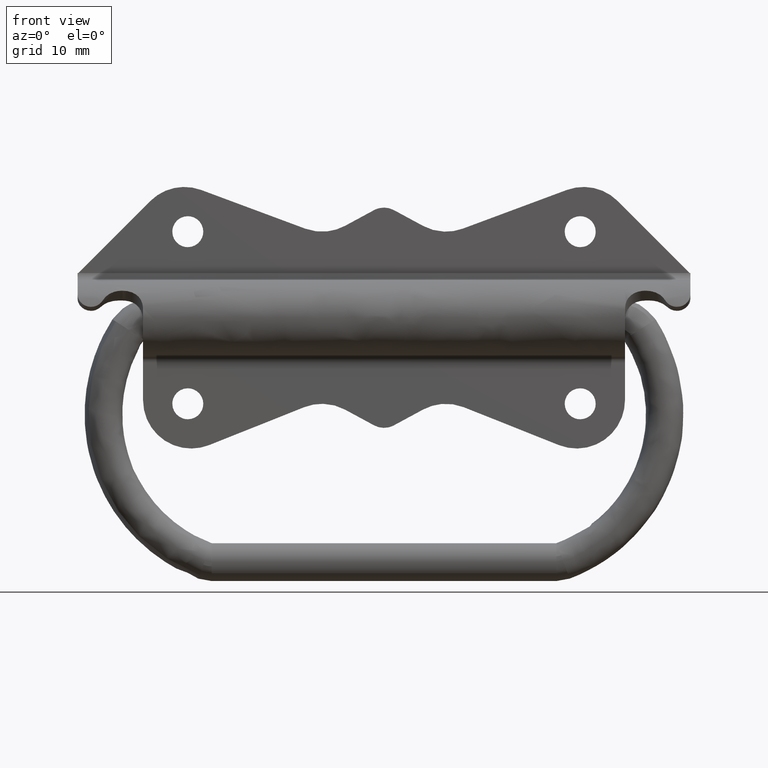
[diagram: clean part render]
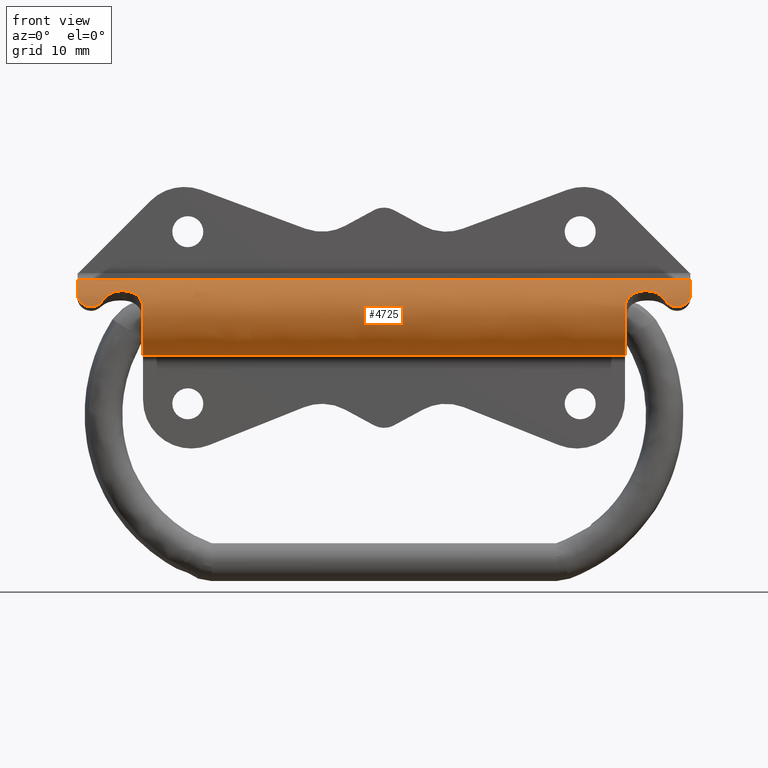
[diagram: same view with one face highlighted and labeled with its STEP entity id]
A machine part, front view. The second image highlights one B-rep face of the part: STEP entity #4725.
In plain terms, the highlighted face is a freeform B-spline surface patch.
Its self-contained STEP definition (entity closure, byte-faithful):
#2433=CARTESIAN_POINT('',(-40.858714640228392,-4.893449210147501,2.510807604677710));
#2434=VERTEX_POINT('',#2433);
#2435=CARTESIAN_POINT('',(-38.014639957376353,-3.848908330853245,3.928855388110955));
#2436=VERTEX_POINT('',#2435);
#2437=CARTESIAN_POINT('',(-40.858714640228392,-4.893449210147501,2.510807604677710));
#2438=CARTESIAN_POINT('',(-40.718434806020582,-4.774601500614652,2.742436356023677));
#2439=CARTESIAN_POINT('',(-40.551381612482608,-4.649309612515444,2.946321127910816));
#2440=CARTESIAN_POINT('',(-40.304409115238322,-4.495542966199494,3.169073041587535));
#2441=CARTESIAN_POINT('',(-40.253091291467548,-4.464934810028913,3.212006150923623));
#2442=CARTESIAN_POINT('',(-40.146413381458117,-4.404306826385441,3.294648350041885));
#2443=CARTESIAN_POINT('',(-40.091686854464427,-4.374648732334834,3.333866919368933));
#2444=CARTESIAN_POINT('',(-39.923380159927923,-4.288007882436129,3.445557874958832));
#2445=CARTESIAN_POINT('',(-39.805682865503222,-4.233353215256480,3.512091850267112));
#2446=CARTESIAN_POINT('',(-39.559137458127928,-4.132185339295604,3.630580247225718));
#2447=CARTESIAN_POINT('',(-39.430294037666350,-4.085664156270279,3.682537059004130));
#2448=CARTESIAN_POINT('',(-39.160804156539143,-4.002873840768987,3.772364219379915));
#2449=CARTESIAN_POINT('',(-39.023365621620492,-3.967605056604223,3.809173832433130));
#2450=CARTESIAN_POINT('',(-38.743456769810521,-3.910133405409939,3.868145799059539));
#2451=CARTESIAN_POINT('',(-38.600955623820852,-3.887916192510616,3.890316904509543));
#2452=CARTESIAN_POINT('',(-38.310756846571792,-3.857525943591376,3.920452975361190));
#2453=CARTESIAN_POINT('',(-38.162611875245517,-3.849413954257926,3.928360053479797));
#2454=CARTESIAN_POINT('',(-38.014639957376353,-3.848908330853245,3.928855388110955));
#2455=B_SPLINE_CURVE_WITH_KNOTS('',3,(#2437,#2438,#2439,#2440,#2441,#2442,#2443,#2444,#2445,#2446,#2447,#2448,#2449,#2450,#2451,#2452,#2453,#2454),.UNSPECIFIED.,.F.,.U.,(4,2,2,2,2,2,2,2,4),(0.0,0.249999999999999,0.312499999999999,0.374999999999999,0.499999999999999,0.624999999999999,0.750000000000000,0.875000000000000,1.0),.UNSPECIFIED.);
#2456=EDGE_CURVE('',#2434,#2436,#2455,.T.);
#2562=CARTESIAN_POINT('',(-35.0,-5.368921926890370,1.193598484816320));
#2563=VERTEX_POINT('',#2562);
#2569=CARTESIAN_POINT('',(-38.014639957376353,-3.848908330853245,3.928855388110955));
#2570=CARTESIAN_POINT('',(-37.808956347201182,-3.848191318282662,3.929557810415579));
#2571=CARTESIAN_POINT('',(-37.606495913697898,-3.862540173138805,3.915659384347801));
#2572=CARTESIAN_POINT('',(-37.308174094467169,-3.905013532694488,3.873147371364592));
#2573=CARTESIAN_POINT('',(-37.209593428227670,-3.922677323162098,3.855323593046115));
#2574=CARTESIAN_POINT('',(-37.063045637199103,-3.954344741527435,3.822746004162632));
#2575=CARTESIAN_POINT('',(-37.014277687916952,-3.965800143407224,3.810871553784593));
#2576=CARTESIAN_POINT('',(-36.917982112959102,-3.990225940969474,3.785288590967354));
#2577=CARTESIAN_POINT('',(-36.870481591791943,-4.003182581718611,3.771595028561853));
#2578=CARTESIAN_POINT('',(-36.636156835835159,-4.071478024649823,3.698575964821885));
#2579=CARTESIAN_POINT('',(-36.458769842813631,-4.137301172630122,3.625782139384826));
#2580=CARTESIAN_POINT('',(-36.249689216700297,-4.230888747844535,3.514317533045436));
#2581=CARTESIAN_POINT('',(-36.208511754954252,-4.250174621981167,3.490989129705585));
#2582=CARTESIAN_POINT('',(-36.127460443658912,-4.289825944209211,3.442147990636789));
#2583=CARTESIAN_POINT('',(-36.087610750255628,-4.310186214035134,3.416637548620640));
#2584=CARTESIAN_POINT('',(-35.971495139328063,-4.372000833613614,3.337675548056424));
#2585=CARTESIAN_POINT('',(-35.898144468072850,-4.414430868677470,3.281501864744414));
#2586=CARTESIAN_POINT('',(-35.759339476791737,-4.500951101005581,3.161786452151732));
#2587=CARTESIAN_POINT('',(-35.693885939690553,-4.545042976856620,3.098245048164286));
#2588=CARTESIAN_POINT('',(-35.601619352303231,-4.611878214488582,2.997034174765556));
#2589=CARTESIAN_POINT('',(-35.571851003655247,-4.634273074801234,2.962312550644591));
#2590=CARTESIAN_POINT('',(-35.514305776532431,-4.679204476878808,2.890817884802061));
#2591=CARTESIAN_POINT('',(-35.486464700233483,-4.701795618658934,2.853952866804435));
#2592=CARTESIAN_POINT('',(-35.353057801881327,-4.814241021063744,2.665323147465005));
#2593=CARTESIAN_POINT('',(-35.266475606710330,-4.900994041086489,2.503367867259777));
#2594=CARTESIAN_POINT('',(-35.163693984678019,-5.022557135663972,2.243450052127176));
#2595=CARTESIAN_POINT('',(-35.133977603228573,-5.061655470069412,2.153968919026535));
#2596=CARTESIAN_POINT('',(-35.083401701886331,-5.136388796276559,1.969123748092182));
#2597=CARTESIAN_POINT('',(-35.062941830400483,-5.171431680170569,1.875208564845169));
#2598=CARTESIAN_POINT('',(-35.014733365702718,-5.269071790755191,1.589758975829295));
#2599=CARTESIAN_POINT('',(-34.999999999999993,-5.324315372205761,1.394243100720028));
#2600=CARTESIAN_POINT('',(-35.0,-5.368921926890370,1.193598484816310));
#2601=B_SPLINE_CURVE_WITH_KNOTS('',3,(#2569,#2570,#2571,#2572,#2573,#2574,#2575,#2576,#2577,#2578,#2579,#2580,#2581,#2582,#2583,#2584,#2585,#2586,#2587,#2588,#2589,#2590,#2591,#2592,#2593,#2594,#2595,#2596,#2597,#2598,#2599,#2600),.UNSPECIFIED.,.F.,.U.,(4,2,2,2,2,2,2,2,2,2,2,2,2,2,2,4),(0.0,0.124999999999997,0.187499999999993,0.218749999999991,0.249999999999989,0.374999999999990,0.406249999999991,0.437499999999992,0.499999999999993,0.562499999999995,0.593749999999996,0.624999999999997,0.749999999999996,0.812499999999997,0.874999999999998,1.0),.UNSPECIFIED.);
#2602=EDGE_CURVE('',#2436,#2563,#2601,.T.);
#2662=CARTESIAN_POINT('',(-42.559969749689600,-5.270597114101750,1.571879785741370));
#2663=VERTEX_POINT('',#2662);
#2669=CARTESIAN_POINT('',(-44.500000000000000,-4.377421717244480,3.329891756408365));
#2670=VERTEX_POINT('',#2669);
#2671=CARTESIAN_POINT('',(-44.500000000000000,-4.377421717244480,3.329891756408365));
#2672=CARTESIAN_POINT('',(-44.499999005133802,-4.455960542820560,3.226645889613455));
#2673=CARTESIAN_POINT('',(-44.488696704239153,-4.529630458358247,3.122228949707400));
#2674=CARTESIAN_POINT('',(-44.454196896171403,-4.633268852322053,2.964251367212626));
#2675=CARTESIAN_POINT('',(-44.439755929913538,-4.666668174282658,2.911368295971343));
#2676=CARTESIAN_POINT('',(-44.404667425379799,-4.731220595594441,2.805246669986920));
#2677=CARTESIAN_POINT('',(-44.383943532305032,-4.762399303178829,2.751934017432812));
#2678=CARTESIAN_POINT('',(-44.313638017839011,-4.850606786542355,2.595373891992773));
#2679=CARTESIAN_POINT('',(-44.255642387444297,-4.903112834810032,2.494227005644520));
#2680=CARTESIAN_POINT('',(-44.168892701228060,-4.961996801254958,2.372618381344936));
#2681=CARTESIAN_POINT('',(-44.150824381277673,-4.973434367956749,2.348540262121655));
#2682=CARTESIAN_POINT('',(-44.113218496892472,-4.995652445542983,2.300901436072443));
#2683=CARTESIAN_POINT('',(-44.093629054234512,-5.006456878613943,2.277285715181510));
#2684=CARTESIAN_POINT('',(-44.033270999748332,-5.037579764591039,2.208020140158403));
#2685=CARTESIAN_POINT('',(-43.990777845956053,-5.056708011437523,2.163749223903662));
#2686=CARTESIAN_POINT('',(-43.856697450288493,-5.109817791457551,2.036710240958330));
#2687=CARTESIAN_POINT('',(-43.758572594698130,-5.139560130949949,1.959658402358374));
#2688=CARTESIAN_POINT('',(-43.544206146035030,-5.189807633610465,1.822425888672187));
#2689=CARTESIAN_POINT('',(-43.431275164608330,-5.209544776300630,1.764403065612467));
#2690=CARTESIAN_POINT('',(-43.254231443738497,-5.232842746686084,1.693509824893489));
#2691=CARTESIAN_POINT('',(-43.193897885286042,-5.239550572100152,1.672564640060150));
#2692=CARTESIAN_POINT('',(-43.070531559959242,-5.251007442522152,1.636240664251912));
#2693=CARTESIAN_POINT('',(-43.007447326621993,-5.255747002591989,1.620890671707646));
#2694=CARTESIAN_POINT('',(-42.817844347612088,-5.266953956071275,1.584250145702826));
#2695=CARTESIAN_POINT('',(-42.689763044720962,-5.270597114101751,1.571879785741370));
#2696=CARTESIAN_POINT('',(-42.559969749689600,-5.270597114101750,1.571879785741370));
#2697=B_SPLINE_CURVE_WITH_KNOTS('',3,(#2671,#2672,#2673,#2674,#2675,#2676,#2677,#2678,#2679,#2680,#2681,#2682,#2683,#2684,#2685,#2686,#2687,#2688,#2689,#2690,#2691,#2692,#2693,#2694,#2695,#2696),.UNSPECIFIED.,.F.,.U.,(4,2,2,2,2,2,2,2,2,2,2,2,4),(0.0,0.124999999999999,0.187499999999998,0.249999999999997,0.374999999999995,0.406249999999997,0.437499999999998,0.499999999999997,0.624999999999999,0.750000000000002,0.812500000000003,0.875000000000004,1.0),.UNSPECIFIED.);
#2698=EDGE_CURVE('',#2670,#2663,#2697,.T.);
#2739=CARTESIAN_POINT('',(-42.559969749689600,-5.270597114101750,1.571879785741370));
#2740=CARTESIAN_POINT('',(-42.385086596087277,-5.270597114101751,1.571879785741370));
#2741=CARTESIAN_POINT('',(-42.214153650737543,-5.264095650910921,1.594175453897691));
#2742=CARTESIAN_POINT('',(-41.963517664806190,-5.243633019603906,1.659770271952392));
#2743=CARTESIAN_POINT('',(-41.880469491022119,-5.234894524022310,1.687314530248914));
#2744=CARTESIAN_POINT('',(-41.720980196467430,-5.213680765735940,1.751765930318030));
#2745=CARTESIAN_POINT('',(-41.644059242329647,-5.201190237895172,1.788731413825803));
#2746=CARTESIAN_POINT('',(-41.495790489004662,-5.171876033672039,1.871800805083728));
#2747=CARTESIAN_POINT('',(-41.424442123930717,-5.155055143621794,1.917904610584846));
#2748=CARTESIAN_POINT('',(-41.287546248224110,-5.116162882626309,2.019363510495566));
#2749=CARTESIAN_POINT('',(-41.223418759526972,-5.094477727478698,2.073685161639209));
#2750=CARTESIAN_POINT('',(-41.104036119025899,-5.046248206316850,2.188436086711957));
#2751=CARTESIAN_POINT('',(-41.048681011340250,-5.019676704917227,2.248942614149146));
#2752=CARTESIAN_POINT('',(-40.946700430118497,-4.960832092491025,2.375929724073454));
#2753=CARTESIAN_POINT('',(-40.899838988286199,-4.928289569382877,2.442905337668488));
#2754=CARTESIAN_POINT('',(-40.858714640228392,-4.893449210147501,2.510807604677710));
#2755=B_SPLINE_CURVE_WITH_KNOTS('',3,(#2739,#2740,#2741,#2742,#2743,#2744,#2745,#2746,#2747,#2748,#2749,#2750,#2751,#2752,#2753,#2754),.UNSPECIFIED.,.F.,.U.,(4,2,2,2,2,2,2,4),(0.0,0.250000000000000,0.375000000000000,0.500000000000000,0.625000000000000,0.750000000000000,0.875000000000000,1.0),.UNSPECIFIED.);
#2756=EDGE_CURVE('',#2663,#2434,#2755,.T.);
#2819=CARTESIAN_POINT('',(37.999426920138973,-3.848370860017220,3.928357825288078));
#2820=VERTEX_POINT('',#2819);
#2826=CARTESIAN_POINT('',(34.999500000000012,-5.368921926890360,1.193598484816366));
#2827=VERTEX_POINT('',#2826);
#2828=CARTESIAN_POINT('',(34.999500000000012,-5.368921926890360,1.193598484816366));
#2829=CARTESIAN_POINT('',(34.999502390050630,-5.324447433530525,1.393556672813301));
#2830=CARTESIAN_POINT('',(35.014146375223802,-5.269466695320497,1.588143579084679));
#2831=CARTESIAN_POINT('',(35.061812138672451,-5.172542605752470,1.871867785549744));
#2832=CARTESIAN_POINT('',(35.082001767797813,-5.137821663055454,1.965079411323322));
#2833=CARTESIAN_POINT('',(35.119433836069668,-5.082261848829279,2.102801069591211));
#2834=CARTESIAN_POINT('',(35.133151732119011,-5.063103669375552,2.148487143399122));
#2835=CARTESIAN_POINT('',(35.162770860124802,-5.024093252925147,2.238154625459192));
#2836=CARTESIAN_POINT('',(35.178684860670828,-5.004214647233559,2.282212300417275));
#2837=CARTESIAN_POINT('',(35.263822561623492,-4.903158269316247,2.498702703004527));
#2838=CARTESIAN_POINT('',(35.349628082216988,-4.816982305631432,2.659801075655535));
#2839=CARTESIAN_POINT('',(35.480862237258819,-4.705837172793808,2.846769509005716));
#2840=CARTESIAN_POINT('',(35.508315952034437,-4.683437810891207,2.883439230651210));
#2841=CARTESIAN_POINT('',(35.565719541989793,-4.638385960133256,2.955333091664211));
#2842=CARTESIAN_POINT('',(35.595565081382823,-4.615820622040110,2.990413759644337));
#2843=CARTESIAN_POINT('',(35.687761498343889,-4.548715645486671,3.092285477805852));
#2844=CARTESIAN_POINT('',(35.753054369012993,-4.504538321792492,3.156079819603577));
#2845=CARTESIAN_POINT('',(35.891208256753039,-4.418013154359558,3.276046071374511));
#2846=CARTESIAN_POINT('',(35.964068986069677,-4.375663719884348,3.332217174105425));
#2847=CARTESIAN_POINT('',(36.079119506613850,-4.314065581796175,3.411058035802213));
#2848=CARTESIAN_POINT('',(36.118431167478789,-4.293854256347203,3.436434098372072));
#2849=CARTESIAN_POINT('',(36.199011849891541,-4.254173968132171,3.485408969046630));
#2850=CARTESIAN_POINT('',(36.240271526353837,-4.234716247122595,3.508991275055600));
#2851=CARTESIAN_POINT('',(36.449089477183087,-4.140603957642617,3.621277017416178));
#2852=CARTESIAN_POINT('',(36.625964784904767,-4.074499047902967,3.694465685648771));
#2853=CARTESIAN_POINT('',(36.859113319583543,-4.005847449108707,3.767931057136546));
#2854=CARTESIAN_POINT('',(36.906351536785287,-3.992819170136858,3.781711208782728));
#2855=CARTESIAN_POINT('',(37.002063091955378,-3.968243748601847,3.807468411873195));
#2856=CARTESIAN_POINT('',(37.050658762860209,-3.956672796302842,3.819469633516618));
#2857=CARTESIAN_POINT('',(37.196868018780087,-3.924614147745431,3.852462650569366));
#2858=CARTESIAN_POINT('',(37.295199366774533,-3.906682595464083,3.870557164114255));
#2859=CARTESIAN_POINT('',(37.592697587317517,-3.863363426895496,3.913897594591922));
#2860=CARTESIAN_POINT('',(37.794342385682206,-3.848394759291173,3.928367942204085));
#2861=CARTESIAN_POINT('',(37.999426920138973,-3.848370860017220,3.928357825288078));
#2862=B_SPLINE_CURVE_WITH_KNOTS('',3,(#2828,#2829,#2830,#2831,#2832,#2833,#2834,#2835,#2836,#2837,#2838,#2839,#2840,#2841,#2842,#2843,#2844,#2845,#2846,#2847,#2848,#2849,#2850,#2851,#2852,#2853,#2854,#2855,#2856,#2857,#2858,#2859,#2860,#2861),.UNSPECIFIED.,.F.,.U.,(4,2,2,2,2,2,2,2,2,2,2,2,2,2,2,2,4),(0.0,0.125000000000008,0.187500000000012,0.218750000000013,0.250000000000015,0.375000000000019,0.406250000000019,0.437500000000019,0.500000000000019,0.562500000000019,0.593750000000017,0.625000000000016,0.750000000000013,0.781250000000009,0.812500000000006,0.875000000000002,1.0),.UNSPECIFIED.);
#2863=EDGE_CURVE('',#2827,#2820,#2862,.T.);
#2901=CARTESIAN_POINT('',(40.858214640228503,-4.893449210147410,2.510807604677755));
#2902=VERTEX_POINT('',#2901);
#2903=CARTESIAN_POINT('',(37.999426920138973,-3.848370860017220,3.928357825288078));
#2904=CARTESIAN_POINT('',(38.147910504258242,-3.848397677367070,3.928370124830208));
#2905=CARTESIAN_POINT('',(38.294592166716157,-3.855971705848424,3.921029997752271));
#2906=CARTESIAN_POINT('',(38.584531918380407,-3.885315425567536,3.892038188294368));
#2907=CARTESIAN_POINT('',(38.727788353938720,-3.907092725956525,3.870380433467781));
#2908=CARTESIAN_POINT('',(38.940050052934907,-3.950013725043965,3.826468858845822));
#2909=CARTESIAN_POINT('',(39.010595516514861,-3.966092245175207,3.809854564993880));
#2910=CARTESIAN_POINT('',(39.149673457818459,-4.001341884559546,3.772862534138159));
#2911=CARTESIAN_POINT('',(39.217933564776430,-4.020429772494872,3.752572599341634));
#2912=CARTESIAN_POINT('',(39.418988248986757,-4.081710877128571,3.686263275588126));
#2913=CARTESIAN_POINT('',(39.548070651820147,-4.127916349540623,3.634832156219326));
#2914=CARTESIAN_POINT('',(39.734428937918722,-4.203921086340138,3.546086155085614));
#2915=CARTESIAN_POINT('',(39.795333946986560,-4.230373757042967,3.514563910730028));
#2916=CARTESIAN_POINT('',(39.914702909522362,-4.285304093128688,3.447426115894249));
#2917=CARTESIAN_POINT('',(39.973376998105259,-4.313895376056167,3.411661257155632));
#2918=CARTESIAN_POINT('',(40.143498228276741,-4.401236230570300,3.299322124108167));
#2919=CARTESIAN_POINT('',(40.249419252045087,-4.461656322420994,3.217612669681411));
#2920=CARTESIAN_POINT('',(40.447290588483739,-4.584535978918139,3.040084789992460));
#2921=CARTESIAN_POINT('',(40.539234419835893,-4.647003155831998,2.944264372062275));
#2922=CARTESIAN_POINT('',(40.667075183832580,-4.740561836902114,2.789257518229127));
#2923=CARTESIAN_POINT('',(40.708052765488610,-4.771766023770775,2.735621450693142));
#2924=CARTESIAN_POINT('',(40.785970952560433,-4.833257363022260,2.625510497569317));
#2925=CARTESIAN_POINT('',(40.823009474798113,-4.863613005125093,2.568928115678573));
#2926=CARTESIAN_POINT('',(40.858214640228503,-4.893449210147410,2.510807604677755));
#2927=B_SPLINE_CURVE_WITH_KNOTS('',3,(#2903,#2904,#2905,#2906,#2907,#2908,#2909,#2910,#2911,#2912,#2913,#2914,#2915,#2916,#2917,#2918,#2919,#2920,#2921,#2922,#2923,#2924,#2925,#2926),.UNSPECIFIED.,.F.,.U.,(4,2,2,2,2,2,2,2,2,2,2,4),(0.000020503860130,0.125000000000004,0.250000000000008,0.312500000000010,0.375000000000012,0.500000000000016,0.562500000000016,0.625000000000015,0.750000000000010,0.875000000000005,0.937500000000002,1.0),.UNSPECIFIED.);
#2928=EDGE_CURVE('',#2820,#2902,#2927,.T.);
#2998=CARTESIAN_POINT('',(42.559469749689583,-5.270597114101750,1.571879785741370));
#2999=VERTEX_POINT('',#2998);
#3000=CARTESIAN_POINT('',(40.858214640228503,-4.893449210147410,2.510807604677755));
#3001=CARTESIAN_POINT('',(40.899044337530292,-4.928039942612410,2.443391848829348));
#3002=CARTESIAN_POINT('',(40.944951958429279,-4.960039756833585,2.377597164035386));
#3003=CARTESIAN_POINT('',(41.021804117457009,-5.004491693382120,2.281732577849361));
#3004=CARTESIAN_POINT('',(41.048729310767833,-5.018687755335737,2.250306603023375));
#3005=CARTESIAN_POINT('',(41.104411191065651,-5.045540521980438,2.189435414489507));
#3006=CARTESIAN_POINT('',(41.133265834877683,-5.058256190590331,2.159864232996517));
#3007=CARTESIAN_POINT('',(41.222826521544349,-5.094445561440505,2.073764981865464));
#3008=CARTESIAN_POINT('',(41.286516707959763,-5.115969533231620,2.019840066322512));
#3009=CARTESIAN_POINT('',(41.421932580528988,-5.154526340020079,1.919311430830098));
#3010=CARTESIAN_POINT('',(41.494210377588850,-5.171644545149026,1.872446344391384));
#3011=CARTESIAN_POINT('',(41.717686796948747,-5.215881611138875,1.747120337744605));
#3012=CARTESIAN_POINT('',(41.876247493393826,-5.236486574663537,1.682663251653453));
#3013=CARTESIAN_POINT('',(42.128728384429678,-5.257192702861084,1.616311139990770));
#3014=CARTESIAN_POINT('',(42.213897941961093,-5.262229311829186,1.599711569454415));
#3015=CARTESIAN_POINT('',(42.385534370888593,-5.268927267099674,1.577510662320275));
#3016=CARTESIAN_POINT('',(42.472112193865797,-5.270597114101749,1.571879785741370));
#3017=CARTESIAN_POINT('',(42.559469749689583,-5.270597114101750,1.571879785741370));
#3018=B_SPLINE_CURVE_WITH_KNOTS('',3,(#3000,#3001,#3002,#3003,#3004,#3005,#3006,#3007,#3008,#3009,#3010,#3011,#3012,#3013,#3014,#3015,#3016,#3017),.UNSPECIFIED.,.F.,.U.,(4,2,2,2,2,2,2,2,4),(0.0,0.125000000000002,0.187500000000005,0.250000000000009,0.375000000000009,0.500000000000009,0.750000000000009,0.875000000000005,1.0),.UNSPECIFIED.);
#3019=EDGE_CURVE('',#2902,#2999,#3018,.T.);
#3100=CARTESIAN_POINT('',(44.499499999999998,-4.377421717244480,3.329891756408365));
#3101=VERTEX_POINT('',#3100);
#3107=CARTESIAN_POINT('',(42.559469749689583,-5.270597114101750,1.571879785741370));
#3108=CARTESIAN_POINT('',(42.689270167708003,-5.270597114101750,1.571879785741370));
#3109=CARTESIAN_POINT('',(42.816877087857080,-5.266952739553802,1.584249767523484));
#3110=CARTESIAN_POINT('',(43.005130129253132,-5.255868595717520,1.620495271883945));
#3111=CARTESIAN_POINT('',(43.067350904609427,-5.251223530034685,1.635545880403929));
#3112=CARTESIAN_POINT('',(43.190706139648093,-5.239832011219948,1.671681603503163));
#3113=CARTESIAN_POINT('',(43.251935157402222,-5.233057934078518,1.692845791483949));
#3114=CARTESIAN_POINT('',(43.429891025139710,-5.209702721925702,1.763940591354505));
#3115=CARTESIAN_POINT('',(43.542331320763857,-5.190032586711297,1.821751171381733));
#3116=CARTESIAN_POINT('',(43.675158433580023,-5.159018238436381,1.906530038926228));
#3117=CARTESIAN_POINT('',(43.701334159650422,-5.152490016551578,1.924116941625600));
#3118=CARTESIAN_POINT('',(43.752892311238682,-5.138732906586141,1.960562034336857));
#3119=CARTESIAN_POINT('',(43.778338876170437,-5.131482838513180,1.979473496987841));
#3120=CARTESIAN_POINT('',(43.852694551647780,-5.108836547454038,2.037526667390634));
#3121=CARTESIAN_POINT('',(43.899796576143942,-5.092510452518414,2.078085254757597));
#3122=CARTESIAN_POINT('',(44.033915595355921,-5.039496679981474,2.204966519622635));
#3123=CARTESIAN_POINT('',(44.113809649271673,-4.998816053444902,2.296451113479647));
#3124=CARTESIAN_POINT('',(44.219039772459247,-4.927729555138895,2.443449169638222));
#3125=CARTESIAN_POINT('',(44.251351874559198,-4.902524123060179,2.493697432879471));
#3126=CARTESIAN_POINT('',(44.309761800863001,-4.849618377830567,2.595085981878948));
#3127=CARTESIAN_POINT('',(44.362260628435230,-4.794017513514550,2.697784620546111));
#3128=CARTESIAN_POINT('',(44.403248059685872,-4.732688550402037,2.802767405958801));
#3129=CARTESIAN_POINT('',(44.438491853475497,-4.668286803291935,2.908770250332937));
#3130=CARTESIAN_POINT('',(44.453250427705072,-4.634433297497115,2.962441549790414));
#3131=CARTESIAN_POINT('',(44.488192447719747,-4.529990026458434,3.121749198716253));
#3132=CARTESIAN_POINT('',(44.499499004773561,-4.455988980693586,3.226608505646621));
#3133=CARTESIAN_POINT('',(44.499499999999998,-4.377421717244480,3.329891756408365));
#3134=B_SPLINE_CURVE_WITH_KNOTS('',3,(#3107,#3108,#3109,#3110,#3111,#3112,#3113,#3114,#3115,#3116,#3117,#3118,#3119,#3120,#3121,#3122,#3123,#3124,#3125,#3126,#3127,#3128,#3129,#3130,#3131,#3132,#3133),.UNSPECIFIED.,.F.,.U.,(4,2,2,2,2,2,2,2,2,2,1,2,2,4),(0.0,0.124999999999994,0.187499999999995,0.249999999999995,0.374999999999990,0.406249999999989,0.437499999999989,0.499999999999994,0.624999999999999,0.687500000000000,0.750000000000000,0.812500000000000,0.875000000000001,1.0),.UNSPECIFIED.);
#3135=EDGE_CURVE('',#2999,#3101,#3134,.T.);
#3555=CARTESIAN_POINT('',(-35.0,-1.010300E-015,-5.500000000000000));
#3556=VERTEX_POINT('',#3555);
#3557=CARTESIAN_POINT('',(-35.0,-1.010300E-015,-5.500000000000000));
#3558=CARTESIAN_POINT('',(-34.999999999999943,-0.563921475231511,-5.500277794530211));
#3559=CARTESIAN_POINT('',(-35.000000000000071,-1.563405594280557,-5.344887916227100));
#3560=CARTESIAN_POINT('',(-35.0,-2.832476510001290,-4.768282634608323));
#3561=CARTESIAN_POINT('',(-35.000000000000057,-3.817235802644948,-4.019508097713495));
#3562=CARTESIAN_POINT('',(-35.000000000000149,-4.501663811764276,-3.213397018946565));
#3563=CARTESIAN_POINT('',(-34.999999999999808,-4.988650315507916,-2.367138838359058));
#3564=CARTESIAN_POINT('',(-35.000000000000142,-5.331478263677083,-1.479293407997496));
#3565=CARTESIAN_POINT('',(-35.000000000000078,-5.552622941691126,-0.262111977580653));
#3566=CARTESIAN_POINT('',(-34.999999999999851,-5.485978832994642,0.668194935780137));
#3567=CARTESIAN_POINT('',(-35.0,-5.368921926890370,1.193598484816320));
#3568=B_SPLINE_CURVE_WITH_KNOTS('',3,(#3557,#3558,#3559,#3560,#3561,#3562,#3563,#3564,#3565,#3566,#3567),.UNSPECIFIED.,.F.,.U.,(4,1,1,1,1,1,1,1,4),(0.000000166918189,1.691699829613647,2.998939903442549,4.152398373835968,5.382644734346298,6.151633949895865,7.074384522398805,8.227845029809201,9.842631859859939),.UNSPECIFIED.);
#3569=EDGE_CURVE('',#3556,#2563,#3568,.T.);
#3660=CARTESIAN_POINT('',(34.999500000000012,-1.010300E-015,-5.500000000000000));
#3661=VERTEX_POINT('',#3660);
#3662=CARTESIAN_POINT('',(34.999500000000012,-1.010300E-015,-5.500000000000000));
#3663=CARTESIAN_POINT('',(34.999500000000040,-0.461369440388408,-5.500095439017393));
#3664=CARTESIAN_POINT('',(34.999499999999962,-1.409719772863821,-5.380037799049075));
#3665=CARTESIAN_POINT('',(34.999500000000111,-2.512358553875043,-4.933925394726011));
#3666=CARTESIAN_POINT('',(34.999500000000012,-3.435966203727416,-4.328412516640645));
#3667=CARTESIAN_POINT('',(34.999499999999927,-4.059406731484234,-3.749960500947090));
#3668=CARTESIAN_POINT('',(34.999500000000182,-4.669603385432904,-2.955670693773853));
#3669=CARTESIAN_POINT('',(34.999499999999813,-5.116091966937602,-2.113083387314515));
#3670=CARTESIAN_POINT('',(34.999500000000090,-5.441634825589536,-1.028379914020074));
#3671=CARTESIAN_POINT('',(34.999499999999642,-5.539988962928107,0.076314632265473));
#3672=CARTESIAN_POINT('',(34.999500000000623,-5.446829974745021,0.843325041110045));
#3673=CARTESIAN_POINT('',(34.999500000000012,-5.368921926890360,1.193598484816366));
#3674=B_SPLINE_CURVE_WITH_KNOTS('',3,(#3662,#3663,#3664,#3665,#3666,#3667,#3668,#3669,#3670,#3671,#3672,#3673),.UNSPECIFIED.,.F.,.U.,(4,1,1,1,1,1,1,1,1,4),(0.000000166918191,1.384110726614159,2.845137491544111,3.537220851477492,4.690668436734046,5.382644734346290,6.536102839410285,7.535765735583929,8.766125412739662,9.842631859859980),.UNSPECIFIED.);
#3675=EDGE_CURVE('',#3661,#2827,#3674,.T.);
#4238=CARTESIAN_POINT('',(-44.500000000000000,3.367667E-016,5.500000000000000));
#4239=VERTEX_POINT('',#4238);
#4240=CARTESIAN_POINT('',(-44.500000000000000,3.367667E-016,5.500000000000000));
#4241=CARTESIAN_POINT('',(-44.500000000000057,-0.448270504218028,5.500124084825099));
#4242=CARTESIAN_POINT('',(-44.499999999999922,-1.186507984848629,5.409196963092506));
#4243=CARTESIAN_POINT('',(-44.500000000000007,-2.289960336398307,5.039157643114674));
#4244=CARTESIAN_POINT('',(-44.500000000000092,-3.373971012417498,4.421743575239026));
#4245=CARTESIAN_POINT('',(-44.499999999999922,-4.058297279329348,3.749756395308833));
#4246=CARTESIAN_POINT('',(-44.500000000000000,-4.377421717244480,3.329891756408365));
#4247=B_SPLINE_CURVE_WITH_KNOTS('',3,(#4240,#4241,#4242,#4243,#4244,#4245,#4246),.UNSPECIFIED.,.F.,.U.,(4,1,1,1,4),(0.000000048990918,1.344782586966519,2.214935687632144,3.480610487953346,5.062706666738522),.UNSPECIFIED.);
#4248=EDGE_CURVE('',#4239,#2670,#4247,.T.);
#4297=CARTESIAN_POINT('',(44.499499999999998,3.367667E-016,5.500000000000000));
#4298=VERTEX_POINT('',#4297);
#4299=CARTESIAN_POINT('',(44.499499999999998,3.367667E-016,5.500000000000000));
#4300=CARTESIAN_POINT('',(44.499499999999983,-0.448263849299602,5.500109230218365));
#4301=CARTESIAN_POINT('',(44.499499999999969,-1.265627449686527,5.399495520013834));
#4302=CARTESIAN_POINT('',(44.499500000000133,-2.487678515627371,4.960177899351882));
#4303=CARTESIAN_POINT('',(44.499499999999593,-3.536192510415406,4.280214220621209));
#4304=CARTESIAN_POINT('',(44.499500000000410,-4.137992167531042,3.644706018840903));
#4305=CARTESIAN_POINT('',(44.499499999999998,-4.377421717244480,3.329891756408365));
#4306=B_SPLINE_CURVE_WITH_KNOTS('',3,(#4299,#4300,#4301,#4302,#4303,#4304,#4305),.UNSPECIFIED.,.F.,.U.,(4,1,1,1,4),(0.000000048990918,1.344782586966519,2.452268792702619,3.876135895840293,5.062706666738522),.UNSPECIFIED.);
#4307=EDGE_CURVE('',#4298,#3101,#4306,.T.);
#4369=CARTESIAN_POINT('',(44.499499999999998,3.367667E-016,5.500000000000000));
#4370=CARTESIAN_POINT('',(-44.500000000000000,3.367667E-016,5.500000000000000));
#4371=QUASI_UNIFORM_CURVE('',1,(#4369,#4370),.UNSPECIFIED.,.F.,.U.);
#4372=EDGE_CURVE('',#4298,#4239,#4371,.T.);
#4642=CARTESIAN_POINT('',(34.999500000000012,-1.010300E-015,-5.500000000000000));
#4643=CARTESIAN_POINT('',(-35.0,-1.010300E-015,-5.500000000000000));
#4644=QUASI_UNIFORM_CURVE('',1,(#4642,#4643),.UNSPECIFIED.,.F.,.U.);
#4645=EDGE_CURVE('',#3661,#3556,#4644,.T.);
#4691=CARTESIAN_POINT('',(46.724487500000002,0.202159578725430,5.496283426528287));
#4692=CARTESIAN_POINT('',(-46.780612187500012,0.202159578725430,5.496283426528287));
#4693=CARTESIAN_POINT('',(46.724487500000002,-5.539332992371365,5.707462077510130));
#4694=CARTESIAN_POINT('',(-46.780612187500019,-5.539332992371365,5.707462077510130));
#4695=CARTESIAN_POINT('',(46.724487500000002,-5.499870259556962,-0.037777348250035));
#4696=CARTESIAN_POINT('',(-46.780612187500012,-5.499870259556962,-0.037777348250035));
#4697=CARTESIAN_POINT('',(46.724487500000002,-5.460407526742559,-5.783016774010202));
#4698=CARTESIAN_POINT('',(-46.780612187500019,-5.460407526742559,-5.783016774010202));
#4699=CARTESIAN_POINT('',(46.724487500000002,0.277642363895982,-5.492987776954379));
#4700=CARTESIAN_POINT('',(-46.780612187500012,0.277642363895982,-5.492987776954379));
#4708=(BOUNDED_SURFACE()B_SPLINE_SURFACE(1,2,((#4691,#4693,#4695,#4697,#4699),(#4692,#4694,#4696,#4698,#4700)),.UNSPECIFIED.,.F.,.F.,.U.)B_SPLINE_SURFACE_WITH_KNOTS((2,2),(3,2,3),(0.0,93.505099687500007),(0.0,9.395143070867450,18.790286141734899),.UNSPECIFIED.)GEOMETRIC_REPRESENTATION_ITEM()RATIONAL_B_SPLINE_SURFACE(((1.0,0.691513055782269,1.0,0.691513055782269,1.0),(1.0,0.691513055782269,1.0,0.691513055782269,1.0)))REPRESENTATION_ITEM('')SURFACE());
#4709=ORIENTED_EDGE('',*,*,#2756,.T.);
#4710=ORIENTED_EDGE('',*,*,#2456,.T.);
#4711=ORIENTED_EDGE('',*,*,#2602,.T.);
#4712=ORIENTED_EDGE('',*,*,#3569,.F.);
#4713=ORIENTED_EDGE('',*,*,#4645,.F.);
#4714=ORIENTED_EDGE('',*,*,#3675,.T.);
#4715=ORIENTED_EDGE('',*,*,#2863,.T.);
#4716=ORIENTED_EDGE('',*,*,#2928,.T.);
#4717=ORIENTED_EDGE('',*,*,#3019,.T.);
#4718=ORIENTED_EDGE('',*,*,#3135,.T.);
#4719=ORIENTED_EDGE('',*,*,#4307,.F.);
#4720=ORIENTED_EDGE('',*,*,#4372,.T.);
#4721=ORIENTED_EDGE('',*,*,#4248,.T.);
#4722=ORIENTED_EDGE('',*,*,#2698,.T.);
#4723=EDGE_LOOP('',(#4709,#4710,#4711,#4712,#4713,#4714,#4715,#4716,#4717,#4718,#4719,#4720,#4721,#4722));
#4724=FACE_OUTER_BOUND('',#4723,.T.);
#4725=ADVANCED_FACE('',(#4724),#4708,.T.);